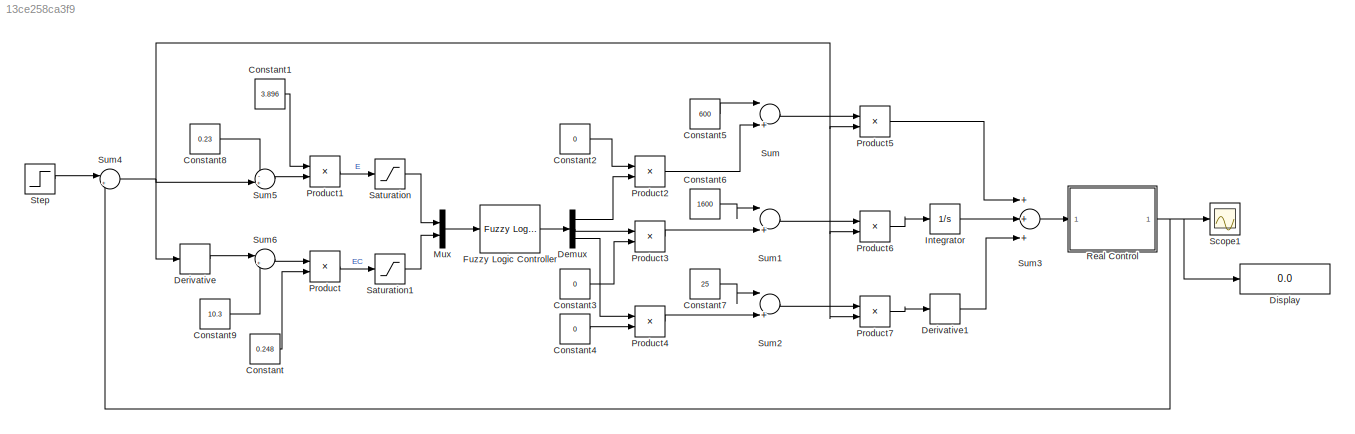
MODEL slx_13ce258ca3f9
KIND model
BLOCK [Constant] Constant
  Value = 0.248
BLOCK [Constant] Constant1
  Value = 3.896
BLOCK [Constant] Constant2
  Value = 0
BLOCK [Constant] Constant3
  Value = 0
BLOCK [Constant] Constant4
  Value = 0
BLOCK [Constant] Constant5
  Value = 600
BLOCK [Constant] Constant6
  Value = 1600
BLOCK [Constant] Constant7
  Value = 25
BLOCK [Constant] Constant8
  Value = 0.23
BLOCK [Constant] Constant9
  Value = 10.3
BLOCK [Demux] Demux
  DisplayOption = bar
  Outputs = 3
  Ports = [1, 3]
BLOCK [Derivative] Derivative
BLOCK [Derivative] Derivative1
BLOCK [Display] Display
  Decimation = 1
  Ports = [1]
BLOCK [Reference] Fuzzy Logic Controller  REF=fuzblock/Fuzzy Logic   (lib defined in mdl_858b3b3e7478)
Controller
  Ports = [1, 1]
  SourceBlock = fuzblock/Fuzzy Logic \nController
  SourceType = FIS
  fis = fzy
BLOCK [Integrator] Integrator
  Ports = [1, 1]
BLOCK [Mux] Mux
  DisplayOption = bar
  Inputs = 2
  Ports = [2, 1]
BLOCK [Product] Product
  InputSameDT = off
  OutDataTypeStr = Inherit: Inherit via internal rule
  Ports = [2, 1]
  RndMeth = Floor
  SaturateOnIntegerOverflow = off
BLOCK [Product] Product1
  InputSameDT = off
  OutDataTypeStr = Inherit: Inherit via internal rule
  Ports = [2, 1]
  RndMeth = Floor
  SaturateOnIntegerOverflow = off
BLOCK [Product] Product2
  InputSameDT = off
  OutDataTypeStr = Inherit: Inherit via internal rule
  Ports = [2, 1]
  RndMeth = Floor
  SaturateOnIntegerOverflow = off
BLOCK [Product] Product3
  InputSameDT = off
  OutDataTypeStr = Inherit: Inherit via internal rule
  Ports = [2, 1]
  RndMeth = Floor
  SaturateOnIntegerOverflow = off
BLOCK [Product] Product4
  InputSameDT = off
  OutDataTypeStr = Inherit: Inherit via internal rule
  Ports = [2, 1]
  RndMeth = Floor
  SaturateOnIntegerOverflow = off
BLOCK [Product] Product5
  InputSameDT = off
  OutDataTypeStr = Inherit: Inherit via internal rule
  Ports = [2, 1]
  RndMeth = Floor
  SaturateOnIntegerOverflow = off
BLOCK [Product] Product6
  InputSameDT = off
  OutDataTypeStr = Inherit: Inherit via internal rule
  Ports = [2, 1]
  RndMeth = Floor
  SaturateOnIntegerOverflow = off
BLOCK [Product] Product7
  InputSameDT = off
  OutDataTypeStr = Inherit: Inherit via internal rule
  Ports = [2, 1]
  RndMeth = Floor
  SaturateOnIntegerOverflow = off
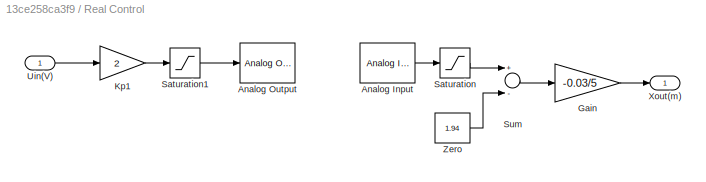
BLOCK [SubSystem] Real Control
  Ports = [1, 1]
  RequestExecContextInheritance = off
BLOCK [Reference] Real Control/Analog Input  REF=rtwinlib/Analog Input
  AttributesFormatString = Advantech\nPCI-1711 [auto]
  Channels = 1
  DataType = 1
  DrvAddress = 4294967295
  DrvName = Advantech/PCI-1711
  DrvOptions = zeros(1,0)
  MaxMissedTicks = 10
  Ports = [0, 1]
  RangeMode = 1
  SampleTime = 0.001
  ShowMissedTicks = off
  SourceBlock = rtwinlib/Analog Input
  SourceType = RTWin Analog Input
  VoltRange = 2
  YieldWhenWaiting = off
BLOCK [Reference] Real Control/Analog Output  REF=rtwinlib/Analog Output
  AttributesFormatString = Advantech\nPCI-1711 [auto]
  Channels = 1
  DrvAddress = 4294967295
  DrvName = Advantech/PCI-1711
  DrvOptions = zeros(1,0)
  FinalValue = -10
  InitialValue = -10
  MaxMissedTicks = 10
  Ports = [1]
  RangeMode = 1
  SampleTime = 0.001
  ShowMissedTicks = off
  SourceBlock = rtwinlib/Analog Output
  SourceType = RTWin Analog Output
  VoltRange = 2
  YieldWhenWaiting = off
BLOCK [Gain] Real Control/Gain
  Gain = -0.03/5
BLOCK [Gain] Real Control/Kp1
  Gain = 2
BLOCK [Saturate] Real Control/Saturation
  InputPortMap = u0
  LowerLimit = 0
  Ports = [1, 1]
  UpperLimit = 5
BLOCK [Saturate] Real Control/Saturation1
  InputPortMap = u0
  LowerLimit = 0
  Ports = [1, 1]
  UpperLimit = 10
BLOCK [Sum] Real Control/Sum
  InputSameDT = off
  Inputs = +-
  Ports = [2, 1]
BLOCK [Inport] Real Control/Uin(V)
  IconDisplay = Port number
BLOCK [Outport] Real Control/Xout(m)
  IconDisplay = Port number
BLOCK [Constant] Real Control/Zero
  SampleTime = -1
  Value = 1.94
BLOCK [Saturate] Saturation
  InputPortMap = u0
  Ports = [1, 1]
BLOCK [Saturate] Saturation1
  InputPortMap = u0
  Ports = [1, 1]
BLOCK [Scope] Scope1
  DataFormat = StructureWithTime
  Floating = off
  MaxDataPoints = 500000000
  NumInputPorts = 1
  Ports = [1]
  SaveName = None
  SaveToWorkspace = on
  ShowLegends = off
  YMax = -0.009
  YMin = -0.013
BLOCK [Step] Step
  After = -0.011
  Before = -0.01
  SampleTime = 0
  Time = 15
BLOCK [Sum] Sum
  InputSameDT = off
  Inputs = |++
  OutDataTypeStr = Inherit: Inherit via internal rule
  Ports = [2, 1]
  SaturateOnIntegerOverflow = off
BLOCK [Sum] Sum1
  InputSameDT = off
  Inputs = |++
  OutDataTypeStr = Inherit: Inherit via internal rule
  Ports = [2, 1]
  SaturateOnIntegerOverflow = off
BLOCK [Sum] Sum2
  InputSameDT = off
  Inputs = |++
  OutDataTypeStr = Inherit: Inherit via internal rule
  Ports = [2, 1]
  SaturateOnIntegerOverflow = off
BLOCK [Sum] Sum3
  InputSameDT = off
  Inputs = +++
  OutDataTypeStr = Inherit: Inherit via internal rule
  Ports = [3, 1]
  SaturateOnIntegerOverflow = off
BLOCK [Sum] Sum4
  IconShape = round
  InputSameDT = off
  Inputs = |+-
  OutDataTypeStr = Inherit: Inherit via internal rule
  Ports = [2, 1]
  SaturateOnIntegerOverflow = off
BLOCK [Sum] Sum5
  IconShape = round
  InputSameDT = off
  Inputs = -+|
  OutDataTypeStr = Inherit: Inherit via internal rule
  Ports = [2, 1]
  SaturateOnIntegerOverflow = off
BLOCK [Sum] Sum6
  IconShape = round
  InputSameDT = off
  Inputs = |++
  OutDataTypeStr = Inherit: Inherit via internal rule
  Ports = [2, 1]
  SaturateOnIntegerOverflow = off
LINE Constant1:1 -> Product1:1
LINE Constant2:1 -> Product2:1
LINE Constant3:1 -> Product3:2
LINE Constant4:1 -> Product4:2
LINE Constant5:1 -> Sum:1
LINE Constant6:1 -> Sum1:1
LINE Constant7:1 -> Sum2:1
LINE Constant8:1 -> Sum5:1
LINE Constant9:1 -> Sum6:2
LINE Constant:1 -> Product:2
LINE Demux:1 -> Product2:2
LINE Demux:2 -> Product3:1
LINE Demux:3 -> Product4:1
LINE Derivative1:1 -> Sum3:3
LINE Derivative:1 -> Sum6:1
LINE Fuzzy Logic Controller:1 -> Demux:1
LINE Integrator:1 -> Sum3:2
LINE Mux:1 -> Fuzzy Logic Controller:1
LINE Product1:1 -> Saturation:1
LINE Product2:1 -> Sum:2
LINE Product3:1 -> Sum1:2
LINE Product4:1 -> Sum2:2
LINE Product5:1 -> Sum3:1
LINE Product6:1 -> Integrator:1
LINE Product7:1 -> Derivative1:1
LINE Product:1 -> Saturation1:1
LINE Real Control/Analog Input:1 -> Real Control/Saturation:1
LINE Real Control/Gain:1 -> Real Control/Xout(m):1
LINE Real Control/Kp1:1 -> Real Control/Saturation1:1
LINE Real Control/Saturation1:1 -> Real Control/Analog Output:1
LINE Real Control/Saturation:1 -> Real Control/Sum:1
LINE Real Control/Sum:1 -> Real Control/Gain:1
LINE Real Control/Uin(V):1 -> Real Control/Kp1:1
LINE Real Control/Zero:1 -> Real Control/Sum:2
NET Real Control:1 -> Display:1, Scope1:1, Sum4:2
LINE Saturation1:1 -> Mux:2
LINE Saturation:1 -> Mux:1
LINE Step:1 -> Sum4:1
LINE Sum1:1 -> Product6:1
LINE Sum2:1 -> Product7:1
LINE Sum3:1 -> Real Control:1
NET Sum4:1 -> Derivative:1, Product5:2, Product6:2, Product7:2, Sum5:2
LINE Sum5:1 -> Product1:2
LINE Sum6:1 -> Product:1
LINE Sum:1 -> Product5:1
note: NET lines group one-source signal fan-out (src -> all destinations, sorted); 1:1 wires keep LINE
